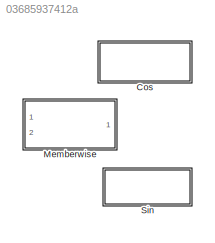
MODEL slx_03685937412a
KIND library
CONFIG AbsTol = auto
CONFIG EnableMultiTasking = off
CONFIG FixedStep = auto
CONFIG MaxStep = auto
CONFIG MinStep = auto
CONFIG RelTol = 1e-3
CONFIG SampleTimeConstraint = Unconstrained
CONFIG Solver = VariableStepAuto
CONFIG SolverName = VariableStepAuto
CONFIG StartTime = 0.0
CONFIG StopTime = 10.0
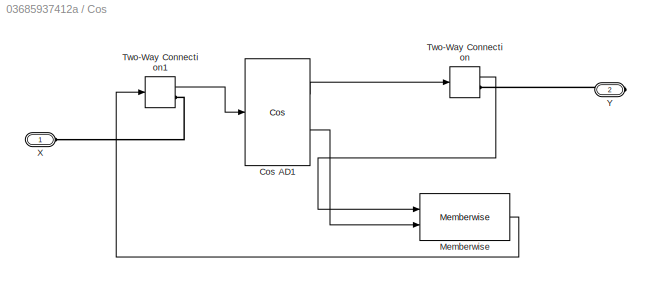
BLOCK [SubSystem] Cos
  Ports = [0, 0, 0, 0, 0, 1, 1]
  RequestExecContextInheritance = off
  Variant = off
BLOCK [Reference] Cos/Cos AD1  REF=ad_mem_base/Cos  (lib defined in slx_641c86b2e6c4)
  Ports = [1, 2]
  SourceBlock = ad_mem_base/Cos
  SourceProductName = AutoDiff
BLOCK [Reference] Cos/Memberwise  REF=ad_mem_any/Memberwise  (lib defined in slx_03685937412a)
  Ports = [2, 1]
  SourceBlock = ad_mem_any/Memberwise
  SourceType = SubSystem
BLOCK [TwoWayConnection] Cos/Two-Way Connection
  Ports = [1, 1, 0, 0, 0, 0, 1]
BLOCK [TwoWayConnection] Cos/Two-Way Connection1
  Ports = [1, 1, 0, 0, 0, 0, 1]
BLOCK [PMIOPort] Cos/X
  Port = 1
  Side = Left
BLOCK [PMIOPort] Cos/Y
  Port = 2
  Side = Right
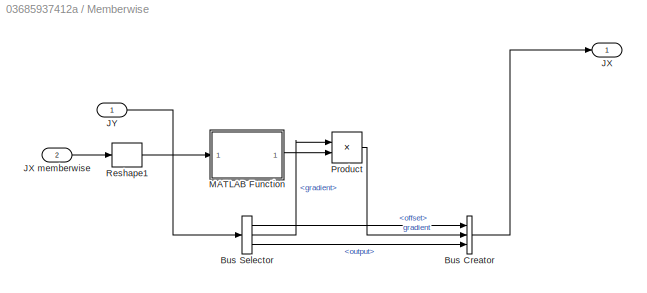
BLOCK [SubSystem] Memberwise
  Ports = [2, 1]
  RequestExecContextInheritance = off
  Variant = off
BLOCK [BusCreator] Memberwise/Bus Creator
  DisplayOption = bar
  InheritFromInputs = on
  Inputs = 'offset','gradient','output'
  Ports = [3, 1]
BLOCK [BusSelector] Memberwise/Bus Selector
  OutputAsBus = off
  OutputSignals = offset,gradient,output
  Ports = [1, 3]
BLOCK [Outport] Memberwise/JX
  IconDisplay = Port number
BLOCK [Inport] Memberwise/JX memberwise
  IconDisplay = Port number
  Port = 2
BLOCK [Inport] Memberwise/JY
  IconDisplay = Port number
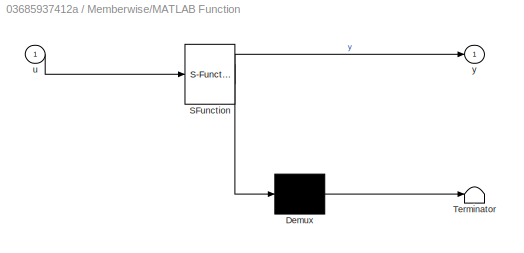
BLOCK [SubSystem] Memberwise/MATLAB Function
  ErrorFcn = Stateflow.Translate.translate
  PermitHierarchicalResolution = ExplicitOnly
  Ports = [1, 1]
  RequestExecContextInheritance = off
  SFBlockType = MATLAB Function
  TreatAsAtomicUnit = on
  Variant = off
BLOCK [Demux] Memberwise/MATLAB Function/ Demux 
  Outputs = 1
  Ports = [1, 1]
BLOCK [S-Function] Memberwise/MATLAB Function/ SFunction 
  EnableBusSupport = off
  FunctionName = sf_sfun
  PortCounts = [1 2]
  Ports = [1, 2]
  SFcnIsStateOwnerBlock = off
  SFunctionDeploymentMode = off
  Tag = Stateflow S-Function ad_mem_any 4
BLOCK [Terminator] Memberwise/MATLAB Function/ Terminator 
BLOCK [Inport] Memberwise/MATLAB Function/u
  IconDisplay = Port number
BLOCK [Outport] Memberwise/MATLAB Function/y
  IconDisplay = Port number
BLOCK [Product] Memberwise/Product
  InputSameDT = off
  Multiplication = Matrix(*)
  OutDataTypeStr = Inherit: Inherit via internal rule
  Ports = [2, 1]
  RndMeth = Floor
  SaturateOnIntegerOverflow = off
BLOCK [Reshape] Memberwise/Reshape1
  OutputDimensionality = Column vector (2-D)
  Ports = [1, 1]
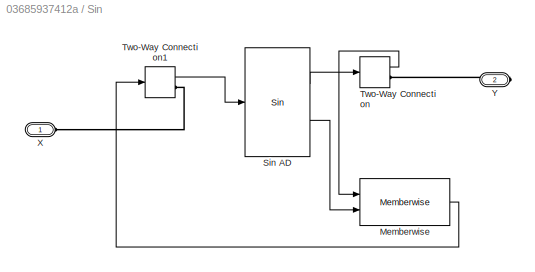
BLOCK [SubSystem] Sin
  Ports = [0, 0, 0, 0, 0, 1, 1]
  RequestExecContextInheritance = off
  Variant = off
BLOCK [Reference] Sin/Memberwise  REF=ad_mem_any/Memberwise  (lib defined in slx_03685937412a)
  Ports = [2, 1]
  SourceBlock = ad_mem_any/Memberwise
  SourceType = SubSystem
BLOCK [Reference] Sin/Sin AD  REF=ad_mem_base/Sin  (lib defined in slx_641c86b2e6c4)
  Ports = [1, 2]
  SourceBlock = ad_mem_base/Sin
  SourceProductName = AutoDiff
  SourceType = SubSystem
BLOCK [TwoWayConnection] Sin/Two-Way Connection
  Ports = [1, 1, 0, 0, 0, 0, 1]
BLOCK [TwoWayConnection] Sin/Two-Way Connection1
  Ports = [1, 1, 0, 0, 0, 0, 1]
BLOCK [PMIOPort] Sin/X
  Port = 1
  Side = Left
BLOCK [PMIOPort] Sin/Y
  Port = 2
  Side = Right
LINE Cos/Cos AD1:1 -> Cos/Two-Way Connection:1
LINE Cos/Cos AD1:2 -> Cos/Memberwise:2
LINE Cos/Memberwise:1 -> Cos/Two-Way Connection1:1
LINE Cos/Two-Way Connection1:1 -> Cos/Cos AD1:1
LINE Cos/Two-Way Connection:1 -> Cos/Memberwise:1
LINE Memberwise/Bus Creator:1 -> Memberwise/JX:1
LINE Memberwise/Bus Selector:1 -> Memberwise/Bus Creator:1
LINE Memberwise/Bus Selector:2 -> Memberwise/Product:1
LINE Memberwise/Bus Selector:3 -> Memberwise/Bus Creator:3
LINE Memberwise/JX memberwise:1 -> Memberwise/Reshape1:1
LINE Memberwise/JY:1 -> Memberwise/Bus Selector:1
LINE Memberwise/MATLAB Function:1 -> Memberwise/Product:2
LINE Memberwise/Product:1 -> Memberwise/Bus Creator:2
LINE Memberwise/Reshape1:1 -> Memberwise/MATLAB Function:1
LINE Sin/Memberwise:1 -> Sin/Two-Way Connection1:1
LINE Sin/Sin AD:1 -> Sin/Two-Way Connection:1
LINE Sin/Sin AD:2 -> Sin/Memberwise:2
LINE Sin/Two-Way Connection1:1 -> Sin/Sin AD:1
LINE Sin/Two-Way Connection:1 -> Sin/Memberwise:1
PLINE Cos/Two-Way Connection1:RConn1 -- Cos/X:RConn1
PLINE Cos/Two-Way Connection:RConn1 -- Cos/Y:RConn1
PLINE Sin/Two-Way Connection1:RConn1 -- Sin/X:RConn1
PLINE Sin/Two-Way Connection:RConn1 -- Sin/Y:RConn1
CHART Memberwise/MATLAB Function states=1 transitions=1
  STATE_LABEL 'eML_blk_kernel()'
  STATE_LABEL 'SCRIPT:\nfunction y = fcn(u)\n\ny = diag(u);'
